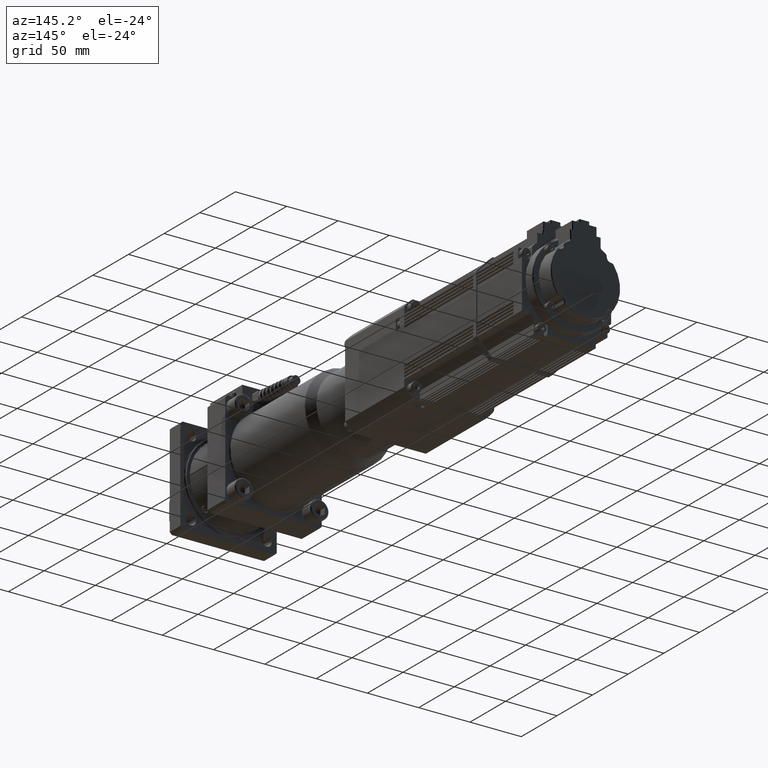
[diagram: clean part render]
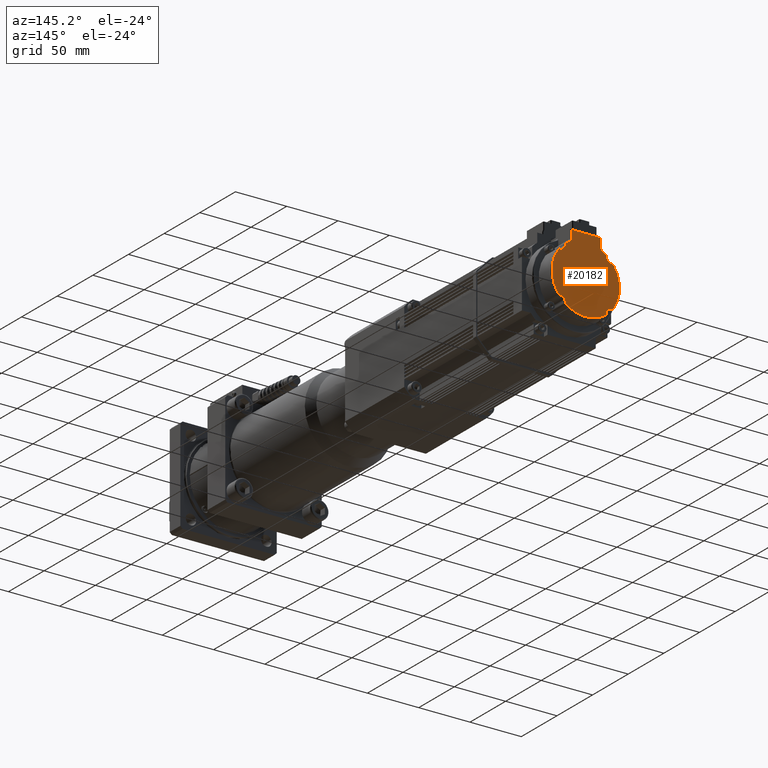
[diagram: same view with one face highlighted and labeled with its STEP entity id]
A machine part, auxiliary view. The second image highlights one B-rep face of the part: STEP entity #20182.
In plain terms, the highlighted planar face has unit normal (-0, 1, -0).
Its self-contained STEP definition (entity closure, byte-faithful):
#785=PLANE('',#21865);
#1936=FACE_OUTER_BOUND('',#3137,.T.);
#3137=EDGE_LOOP('',(#16231,#16232,#16233,#16234,#16235,#16236,#16237,#16238,
#16239,#16240,#16241,#16242,#16243,#16244,#16245,#16246,#16247,#16248,#16249,
#16250,#16251,#16252));
#4219=CIRCLE('',#21866,3.);
#4220=CIRCLE('',#21867,33.);
#4221=CIRCLE('',#21868,2.);
#4222=CIRCLE('',#21869,5.);
#4223=CIRCLE('',#21870,2.);
#4224=CIRCLE('',#21871,33.);
#4225=CIRCLE('',#21872,2.);
#4226=CIRCLE('',#21873,5.);
#4227=CIRCLE('',#21874,2.);
#4228=CIRCLE('',#21875,33.);
#4229=CIRCLE('',#21876,2.);
#4230=CIRCLE('',#21877,5.);
#4231=CIRCLE('',#21878,2.);
#4232=CIRCLE('',#21879,33.);
#4233=CIRCLE('',#21880,2.);
#4234=CIRCLE('',#21881,5.);
#4235=CIRCLE('',#21882,2.);
#4236=CIRCLE('',#21883,33.);
#4237=CIRCLE('',#21884,3.);
#5305=LINE('',#33771,#7098);
#5306=LINE('',#33773,#7099);
#5307=LINE('',#33775,#7100);
#7098=VECTOR('',#25741,10.);
#7099=VECTOR('',#25742,10.);
#7100=VECTOR('',#25743,10.);
#9241=VERTEX_POINT('',#33769);
#9242=VERTEX_POINT('',#33770);
#9243=VERTEX_POINT('',#33772);
#9244=VERTEX_POINT('',#33774);
#9245=VERTEX_POINT('',#33776);
#9246=VERTEX_POINT('',#33778);
#9247=VERTEX_POINT('',#33780);
#9248=VERTEX_POINT('',#33782);
#9249=VERTEX_POINT('',#33784);
#9250=VERTEX_POINT('',#33786);
#9251=VERTEX_POINT('',#33788);
#9252=VERTEX_POINT('',#33790);
#9253=VERTEX_POINT('',#33792);
#9254=VERTEX_POINT('',#33794);
#9255=VERTEX_POINT('',#33796);
#9256=VERTEX_POINT('',#33798);
#9257=VERTEX_POINT('',#33800);
#9258=VERTEX_POINT('',#33802);
#9259=VERTEX_POINT('',#33804);
#9260=VERTEX_POINT('',#33806);
#9261=VERTEX_POINT('',#33808);
#9262=VERTEX_POINT('',#33810);
#11727=EDGE_CURVE('',#9241,#9242,#5305,.T.);
#11728=EDGE_CURVE('',#9241,#9243,#5306,.T.);
#11729=EDGE_CURVE('',#9244,#9243,#5307,.T.);
#11730=EDGE_CURVE('',#9245,#9244,#4219,.T.);
#11731=EDGE_CURVE('',#9246,#9245,#4220,.T.);
#11732=EDGE_CURVE('',#9247,#9246,#4221,.T.);
#11733=EDGE_CURVE('',#9248,#9247,#4222,.T.);
#11734=EDGE_CURVE('',#9249,#9248,#4223,.T.);
#11735=EDGE_CURVE('',#9250,#9249,#4224,.T.);
#11736=EDGE_CURVE('',#9251,#9250,#4225,.T.);
#11737=EDGE_CURVE('',#9252,#9251,#4226,.T.);
#11738=EDGE_CURVE('',#9253,#9252,#4227,.T.);
#11739=EDGE_CURVE('',#9254,#9253,#4228,.T.);
#11740=EDGE_CURVE('',#9255,#9254,#4229,.T.);
#11741=EDGE_CURVE('',#9256,#9255,#4230,.T.);
#11742=EDGE_CURVE('',#9257,#9256,#4231,.T.);
#11743=EDGE_CURVE('',#9258,#9257,#4232,.T.);
#11744=EDGE_CURVE('',#9259,#9258,#4233,.T.);
#11745=EDGE_CURVE('',#9260,#9259,#4234,.T.);
#11746=EDGE_CURVE('',#9261,#9260,#4235,.T.);
#11747=EDGE_CURVE('',#9262,#9261,#4236,.T.);
#11748=EDGE_CURVE('',#9242,#9262,#4237,.T.);
#16231=ORIENTED_EDGE('',*,*,#11727,.F.);
#16232=ORIENTED_EDGE('',*,*,#11728,.T.);
#16233=ORIENTED_EDGE('',*,*,#11729,.F.);
#16234=ORIENTED_EDGE('',*,*,#11730,.F.);
#16235=ORIENTED_EDGE('',*,*,#11731,.F.);
#16236=ORIENTED_EDGE('',*,*,#11732,.F.);
#16237=ORIENTED_EDGE('',*,*,#11733,.F.);
#16238=ORIENTED_EDGE('',*,*,#11734,.F.);
#16239=ORIENTED_EDGE('',*,*,#11735,.F.);
#16240=ORIENTED_EDGE('',*,*,#11736,.F.);
#16241=ORIENTED_EDGE('',*,*,#11737,.F.);
#16242=ORIENTED_EDGE('',*,*,#11738,.F.);
#16243=ORIENTED_EDGE('',*,*,#11739,.F.);
#16244=ORIENTED_EDGE('',*,*,#11740,.F.);
#16245=ORIENTED_EDGE('',*,*,#11741,.F.);
#16246=ORIENTED_EDGE('',*,*,#11742,.F.);
#16247=ORIENTED_EDGE('',*,*,#11743,.F.);
#16248=ORIENTED_EDGE('',*,*,#11744,.F.);
#16249=ORIENTED_EDGE('',*,*,#11745,.F.);
#16250=ORIENTED_EDGE('',*,*,#11746,.F.);
#16251=ORIENTED_EDGE('',*,*,#11747,.F.);
#16252=ORIENTED_EDGE('',*,*,#11748,.F.);
#20182=ADVANCED_FACE('',(#1936),#785,.T.);
#21865=AXIS2_PLACEMENT_3D('',#33768,#25739,#25740);
#21866=AXIS2_PLACEMENT_3D('',#33777,#25744,#25745);
#21867=AXIS2_PLACEMENT_3D('',#33779,#25746,#25747);
#21868=AXIS2_PLACEMENT_3D('',#33781,#25748,#25749);
#21869=AXIS2_PLACEMENT_3D('',#33783,#25750,#25751);
#21870=AXIS2_PLACEMENT_3D('',#33785,#25752,#25753);
#21871=AXIS2_PLACEMENT_3D('',#33787,#25754,#25755);
#21872=AXIS2_PLACEMENT_3D('',#33789,#25756,#25757);
#21873=AXIS2_PLACEMENT_3D('',#33791,#25758,#25759);
#21874=AXIS2_PLACEMENT_3D('',#33793,#25760,#25761);
#21875=AXIS2_PLACEMENT_3D('',#33795,#25762,#25763);
#21876=AXIS2_PLACEMENT_3D('',#33797,#25764,#25765);
#21877=AXIS2_PLACEMENT_3D('',#33799,#25766,#25767);
#21878=AXIS2_PLACEMENT_3D('',#33801,#25768,#25769);
#21879=AXIS2_PLACEMENT_3D('',#33803,#25770,#25771);
#21880=AXIS2_PLACEMENT_3D('',#33805,#25772,#25773);
#21881=AXIS2_PLACEMENT_3D('',#33807,#25774,#25775);
#21882=AXIS2_PLACEMENT_3D('',#33809,#25776,#25777);
#21883=AXIS2_PLACEMENT_3D('',#33811,#25778,#25779);
#21884=AXIS2_PLACEMENT_3D('',#33812,#25780,#25781);
#25739=DIRECTION('center_axis',(-3.96750887945431E-16,1.,-1.17835930746298E-16));
#25740=DIRECTION('ref_axis',(1.,3.96750887945432E-16,2.55351295663786E-15));
#25741=DIRECTION('',(-1.24991337948772E-15,-1.17835930746299E-16,-1.));
#25742=DIRECTION('',(1.,3.96750887945432E-16,2.55351295663786E-15));
#25743=DIRECTION('',(1.24991337948772E-15,1.17835930746299E-16,1.));
#25744=DIRECTION('center_axis',(-3.96750887945431E-16,1.,-1.17835930746298E-16));
#25745=DIRECTION('ref_axis',(-0.857969178415583,-4.00932488494975E-16,-0.513701166914082));
#25746=DIRECTION('center_axis',(3.96750887945431E-16,-1.,1.17835930746298E-16));
#25747=DIRECTION('ref_axis',(0.527575775901919,3.09418720533912E-16,0.849507975643248));
#25748=DIRECTION('center_axis',(3.96750887945431E-16,-1.,1.17835930746298E-16));
#25749=DIRECTION('ref_axis',(0.896630156082484,4.07914235244046E-16,0.442780265146835));
#25750=DIRECTION('center_axis',(-3.96750887945431E-16,1.,-1.17835930746298E-16));
#25751=DIRECTION('ref_axis',(-0.707106781186547,-3.63867829006134E-16,-0.707106781186548));
#25752=DIRECTION('center_axis',(3.96750887945431E-16,-1.,1.17835930746298E-16));
#25753=DIRECTION('ref_axis',(0.442780265146829,2.81328712338897E-16,0.896630156082486));
#25754=DIRECTION('center_axis',(3.96750887945431E-16,-1.,1.17835930746298E-16));
#25755=DIRECTION('ref_axis',(1.,3.96750887945432E-16,2.61882019338051E-15));
#25756=DIRECTION('center_axis',(3.96750887945431E-16,-1.,1.17835930746298E-16));
#25757=DIRECTION('ref_axis',(0.442780265146835,7.00182143845422E-17,-0.896630156082483));
#25758=DIRECTION('center_axis',(-3.96750887945431E-16,1.,-1.17835930746298E-16));
#25759=DIRECTION('ref_axis',(-0.707106781186549,-1.97222657609864E-16,0.707106781186546));
#25760=DIRECTION('center_axis',(3.96750887945431E-16,-1.,1.17835930746298E-16));
#25761=DIRECTION('ref_axis',(0.896630156082486,3.03563385924707E-16,-0.442780265146831));
#25762=DIRECTION('center_axis',(3.96750887945431E-16,-1.,1.17835930746298E-16));
#25763=DIRECTION('ref_axis',(2.61882019338051E-15,-1.17835930746297E-16,
-1.));
#25764=DIRECTION('center_axis',(3.96750887945431E-16,-1.,1.17835930746298E-16));
#25765=DIRECTION('ref_axis',(-0.896630156082483,-4.07914235244046E-16,-0.442780265146835));
#25766=DIRECTION('center_axis',(-3.96750887945431E-16,1.,-1.17835930746298E-16));
#25767=DIRECTION('ref_axis',(0.707106781186545,3.63867829006134E-16,0.70710678118655));
#25768=DIRECTION('center_axis',(3.96750887945431E-16,-1.,1.17835930746298E-16));
#25769=DIRECTION('ref_axis',(-0.442780265146829,-2.81328712338897E-16,-0.896630156082486));
#25770=DIRECTION('center_axis',(3.96750887945431E-16,-1.,1.17835930746298E-16));
#25771=DIRECTION('ref_axis',(-1.,-3.96750887945432E-16,-2.4882057198952E-15));
#25772=DIRECTION('center_axis',(3.96750887945431E-16,-1.,1.17835930746298E-16));
#25773=DIRECTION('ref_axis',(-0.442780265146834,-7.00182143845416E-17,0.896630156082484));
#25774=DIRECTION('center_axis',(-3.96750887945431E-16,1.,-1.17835930746298E-16));
#25775=DIRECTION('ref_axis',(0.707106781186549,1.97222657609864E-16,-0.707106781186546));
#25776=DIRECTION('center_axis',(3.96750887945431E-16,-1.,1.17835930746298E-16));
#25777=DIRECTION('ref_axis',(-0.896630156082486,-3.03563385924708E-16,0.442780265146829));
#25778=DIRECTION('center_axis',(3.96750887945431E-16,-1.,1.17835930746298E-16));
#25779=DIRECTION('ref_axis',(-0.527575775901924,-1.09213594561263E-16,0.849507975643244));
#25780=DIRECTION('center_axis',(-3.96750887945431E-16,1.,-1.17835930746298E-16));
#25781=DIRECTION('ref_axis',(0.857969178415583,2.79867578237414E-16,-0.513701166914082));
#33768=CARTESIAN_POINT('Origin',(-9.08181660600319E-14,516.,2.99999999999995));
#33769=CARTESIAN_POINT('',(-14.0000000000002,516.,39.9999999999999));
#33770=CARTESIAN_POINT('',(-14.0000000000002,516.,31.7332633052448));
#33771=CARTESIAN_POINT('',(-14.0000000000002,516.,20.0404962177391));
#33772=CARTESIAN_POINT('',(13.9999999999998,516.,40.));
#33773=CARTESIAN_POINT('',(-15.0000000000002,516.,39.9999999999999));
#33774=CARTESIAN_POINT('',(13.9999999999998,516.,31.7332633052449));
#33775=CARTESIAN_POINT('',(13.9999999999998,516.,21.5));
#33776=CARTESIAN_POINT('',(15.5833333333332,516.,29.0888246964745));
#33777=CARTESIAN_POINT('Origin',(16.9999999999998,516.,31.7332633052449));
#33778=CARTESIAN_POINT('',(19.1655271910374,516.,26.8641502283173));
#33779=CARTESIAN_POINT('Origin',(-7.87167350916177E-14,516.,-4.6242990364748E-14));
#33780=CARTESIAN_POINT('',(20.002842920393,516.,25.1685856510354));
#33781=CARTESIAN_POINT('Origin',(18.0039800885503,516.,25.2360199114496));
#33782=CARTESIAN_POINT('',(25.1685856510353,516.,20.0028429203932));
#33783=CARTESIAN_POINT('Origin',(24.9999999999999,516.,25.));
#33784=CARTESIAN_POINT('',(26.8641502283172,516.,19.1655271910375));
#33785=CARTESIAN_POINT('Origin',(25.2360199114495,516.,18.0039800885504));
#33786=CARTESIAN_POINT('',(26.8641502283173,516.,-19.1655271910375));
#33787=CARTESIAN_POINT('Origin',(-7.87167350916177E-14,516.,-4.6242990364748E-14));
#33788=CARTESIAN_POINT('',(25.1685856510354,516.,-20.0028429203931));
#33789=CARTESIAN_POINT('Origin',(25.2360199114496,516.,-18.0039800885504));
#33790=CARTESIAN_POINT('',(20.0028429203931,516.,-25.1685856510354));
#33791=CARTESIAN_POINT('Origin',(25.,516.,-25.));
#33792=CARTESIAN_POINT('',(19.1655271910375,516.,-26.8641502283173));
#33793=CARTESIAN_POINT('Origin',(18.0039800885504,516.,-25.2360199114496));
#33794=CARTESIAN_POINT('',(-19.1655271910375,516.,-26.8641502283174));
#33795=CARTESIAN_POINT('Origin',(-7.87167350916177E-14,516.,-4.6242990364748E-14));
#33796=CARTESIAN_POINT('',(-20.0028429203931,516.,-25.1685856510355));
#33797=CARTESIAN_POINT('Origin',(-18.0039800885504,516.,-25.2360199114497));
#33798=CARTESIAN_POINT('',(-25.1685856510355,516.,-20.0028429203932));
#33799=CARTESIAN_POINT('Origin',(-25.,516.,-25.0000000000001));
#33800=CARTESIAN_POINT('',(-26.8641502283174,516.,-19.1655271910376));
#33801=CARTESIAN_POINT('Origin',(-25.2360199114496,516.,-18.0039800885505));
#33802=CARTESIAN_POINT('',(-26.8641502283175,516.,19.1655271910374));
#33803=CARTESIAN_POINT('Origin',(-7.87167350916177E-14,516.,-4.6242990364748E-14));
#33804=CARTESIAN_POINT('',(-25.1685856510356,516.,20.002842920393));
#33805=CARTESIAN_POINT('Origin',(-25.2360199114497,516.,18.0039800885503));
#33806=CARTESIAN_POINT('',(-20.0028429203933,516.,25.1685856510353));
#33807=CARTESIAN_POINT('Origin',(-25.0000000000001,516.,24.9999999999999));
#33808=CARTESIAN_POINT('',(-19.1655271910377,516.,26.8641502283172));
#33809=CARTESIAN_POINT('Origin',(-18.0039800885505,516.,25.2360199114495));
#33810=CARTESIAN_POINT('',(-15.5833333333335,516.,29.0888246964744));
#33811=CARTESIAN_POINT('Origin',(-7.87167350916177E-14,516.,-4.6242990364748E-14));
#33812=CARTESIAN_POINT('Origin',(-17.0000000000002,516.,31.7332633052448));